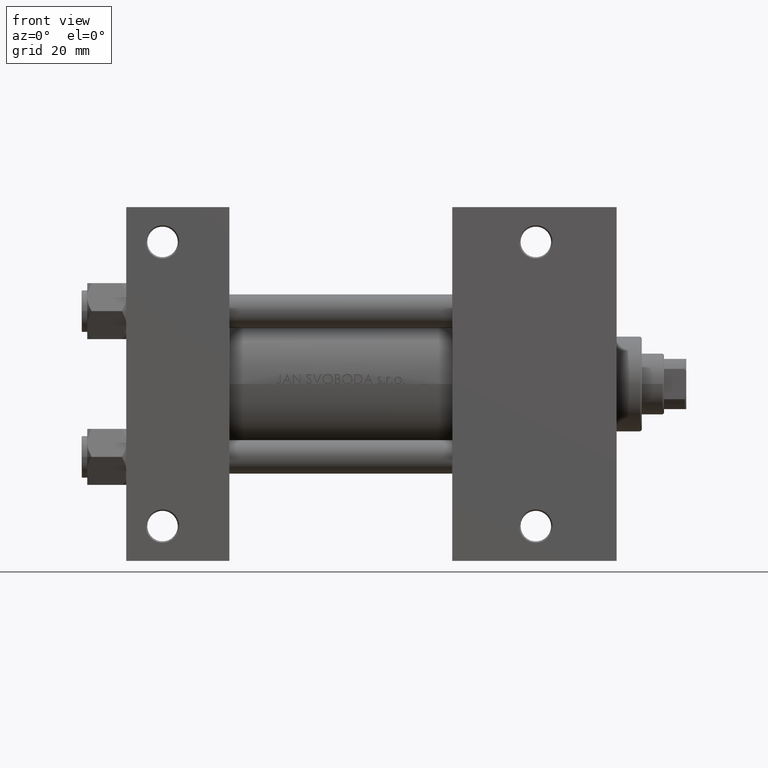
[diagram: clean part render]
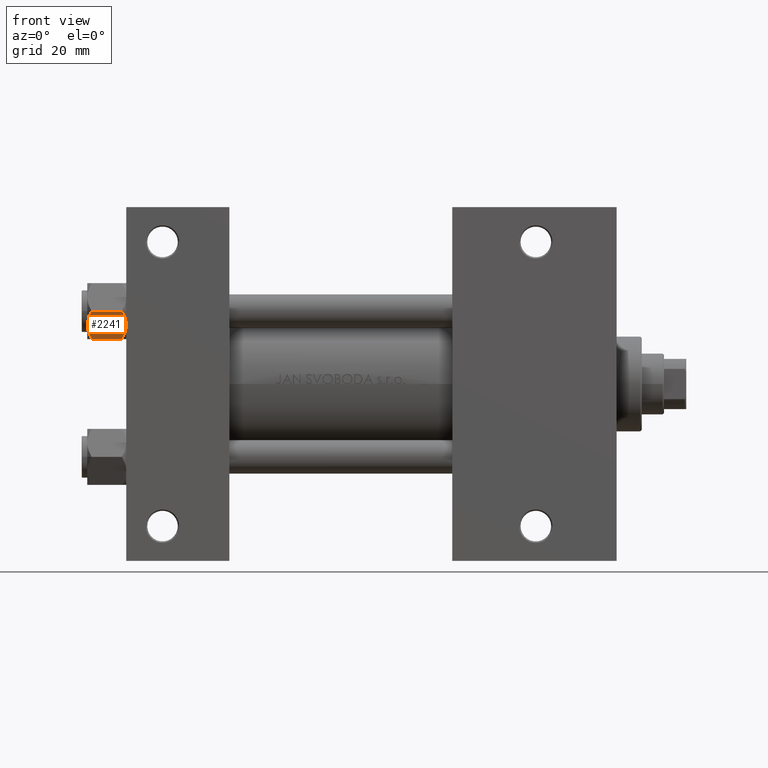
[diagram: same view with one face highlighted and labeled with its STEP entity id]
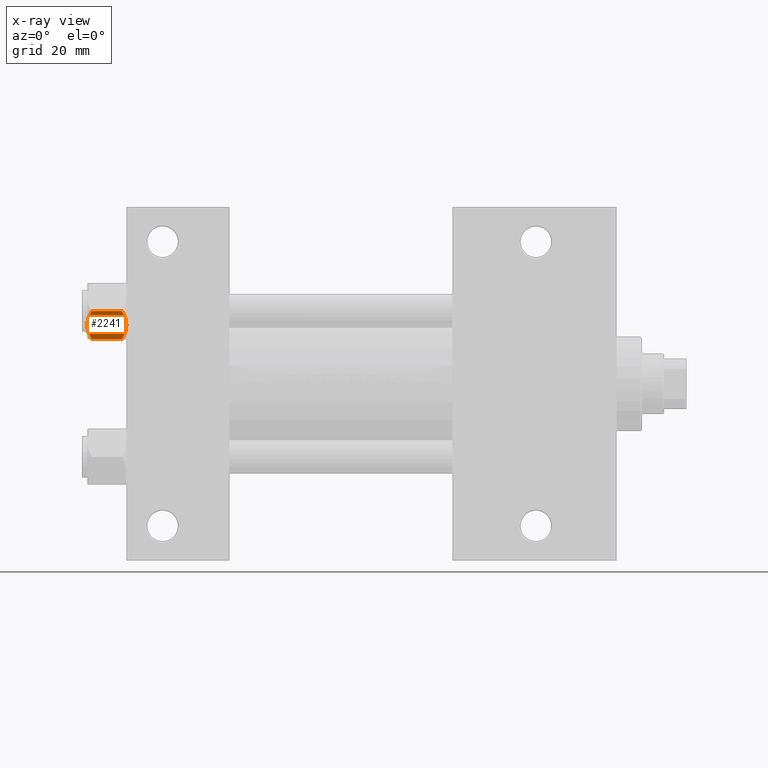
[diagram: x-ray of the same camera — body ghosted, the highlighted face saturated]
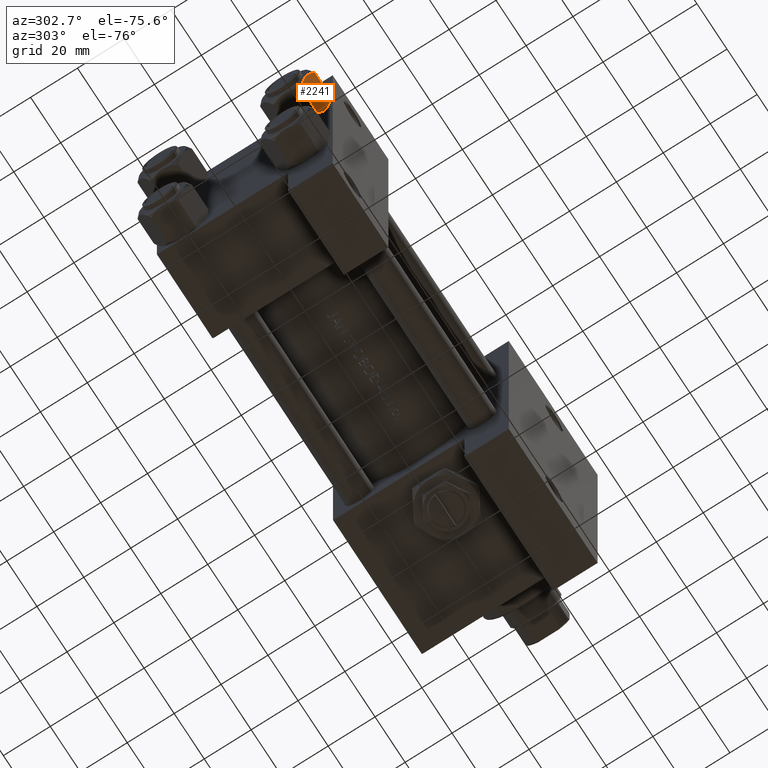
[diagram: same view with one face highlighted and labeled with its STEP entity id]
A machine part, front view. The second image highlights one B-rep face of the part: STEP entity #2241.
The next image is the same camera in x-ray: the body ghosted, the highlighted face saturated — about 0% of this face is hidden behind the body in this view.
A second angle (auxiliary view) of the same face is appended — the face is thin or edge-on in the first view.
In plain terms, the highlighted planar face has unit normal (0, 0.866, 0.5).
Its self-contained STEP definition (entity closure, byte-faithful):
#204 = VERTEX_POINT ( 'NONE', #11112 ) ;
#2036 = CARTESIAN_POINT ( 'NONE',  ( -7.700834831386344170, 6.788193195293096949, -0.1903979688073418330 ) ) ;
#2241 = ADVANCED_FACE ( 'NONE', ( #46553 ), #24602, .F. ) ;
#2981 = CARTESIAN_POINT ( 'NONE',  ( -8.209704053696567527, 5.906805847843725310, -14.00000000000000533 ) ) ;
#4622 = VECTOR ( 'NONE', #5082, 1000.000000000000000 ) ;
#4856 = VERTEX_POINT ( 'NONE', #40307 ) ;
#5082 = DIRECTION ( 'NONE',  ( -0.000000000000000000, -0.000000000000000000, 1.000000000000000000 ) ) ;
#5163 = VERTEX_POINT ( 'NONE', #27415 ) ;
#5898 = ORIENTED_EDGE ( 'NONE', *, *, #14773, .F. ) ;
#6280 = CARTESIAN_POINT ( 'NONE',  ( -7.455303369716805406, 7.213466161761384221, -0.3002673809867381083 ) ) ;
#6316 = ORIENTED_EDGE ( 'NONE', *, *, #12375, .F. ) ;
#7802 = ORIENTED_EDGE ( 'NONE', *, *, #11212, .F. ) ;
#9308 = CARTESIAN_POINT ( 'NONE',  ( -11.61999999999999922, 6.288644352490894150E-15, -14.00000000000000000 ) ) ;
#9390 = ORIENTED_EDGE ( 'NONE', *, *, #11914, .F. ) ;
#9404 = DIRECTION ( 'NONE',  ( 0.5000000000000001110, 0.8660254037844384856, 0.000000000000000000 ) ) ;
#9760 = CARTESIAN_POINT ( 'NONE',  ( -8.715000000000001634, 5.031607595987591885, 0.000000000000000000 ) ) ;
#10204 = CARTESIAN_POINT ( 'NONE',  ( -7.713000053756302599, 6.767122412062954062, -13.84547602999601601 ) ) ;
#11042 = CARTESIAN_POINT ( 'NONE',  ( -8.969430103550378064, 4.590921729663314466, -14.00000000000000178 ) ) ;
#11112 = CARTESIAN_POINT ( 'NONE',  ( -11.61999999999999922, 6.270720075510426383E-15, -12.44321519197518811 ) ) ;
#11212 = EDGE_CURVE ( 'NONE', #204, #14468, #29225, .T. ) ;
#11285 = CARTESIAN_POINT ( 'NONE',  ( -9.227666995912096937, 4.143642311704127223, -13.96005881939308857 ) ) ;
#11914 = EDGE_CURVE ( 'NONE', #4856, #5163, #27046, .T. ) ;
#12110 = VERTEX_POINT ( 'NONE', #15766 ) ;
#12375 = EDGE_CURVE ( 'NONE', #5163, #12110, #29802, .T. ) ;
#12882 = DIRECTION ( 'NONE',  ( 0.8660254037844385966, -0.5000000000000002220, 0.000000000000000000 ) ) ;
#14321 = CARTESIAN_POINT ( 'NONE',  ( -9.220295946303428636, 4.156409344131454020, 2.043043468777371629E-15 ) ) ;
#14468 = VERTEX_POINT ( 'NONE', #16332 ) ;
#14773 = EDGE_CURVE ( 'NONE', #12110, #27246, #42713, .T. ) ;
#15766 = CARTESIAN_POINT ( 'NONE',  ( -8.715000000000001634, 5.031607595987591885, 0.000000000000000000 ) ) ;
#16332 = CARTESIAN_POINT ( 'NONE',  ( -8.715000000000001634, 5.031607595987591885, -14.00000000000000000 ) ) ;
#17228 = CARTESIAN_POINT ( 'NONE',  ( -8.460569896449618099, 5.472293462311865753, 2.204732646931026331E-15 ) ) ;
#17567 = CARTESIAN_POINT ( 'NONE',  ( -10.69662495661650325, 1.599332489581336780, -0.7114554706434498277 ) ) ;
#18173 = CARTESIAN_POINT ( 'NONE',  ( -5.809999999999997833, 10.06321519197518022, -12.44321519197518455 ) ) ;
#18544 = CARTESIAN_POINT ( 'NONE',  ( -8.715000000000001634, 5.031607595987591885, 0.000000000000000000 ) ) ;
#19617 = ORIENTED_EDGE ( 'NONE', *, *, #37010, .T. ) ;
#20956 = CARTESIAN_POINT ( 'NONE',  ( -6.265545725125282850, 9.274186850887385702, -1.101239082899535537 ) ) ;
#21653 = CARTESIAN_POINT ( 'NONE',  ( -6.265018354709776638, 9.275100283241455301, -12.89823354668505218 ) ) ;
#22994 = CARTESIAN_POINT ( 'NONE',  ( -11.61999999999999922, 6.270720075510426383E-15, -12.44321519197518811 ) ) ;
#23225 = CARTESIAN_POINT ( 'NONE',  ( -9.729165168613649328, 3.275021996682086822, -13.80960203119265906 ) ) ;
#24602 = PLANE ( 'NONE',  #44635 ) ;
#24740 = B_SPLINE_CURVE_WITH_KNOTS ( 'NONE', 3,
 ( #48076, #2981, #10204, #30138, #21653, #18173 ),
 .UNSPECIFIED., .F., .F.,
 ( 4, 2, 4 ),
 ( 0.006022845781655582903, 0.009013049135303629819, 0.01200325248895167847 ),
 .UNSPECIFIED. ) ;
#25232 = EDGE_LOOP ( 'NONE', ( #7802, #19617, #5898, #6316, #9390, #31334 ) ) ;
#27046 = LINE ( 'NONE', #35023, #41683 ) ;
#27246 = VERTEX_POINT ( 'NONE', #28652 ) ;
#27415 = CARTESIAN_POINT ( 'NONE',  ( -5.809999999999997833, 10.06321519197518022, -1.556784808024815447 ) ) ;
#28652 = CARTESIAN_POINT ( 'NONE',  ( -11.61999999999999922, 6.301834029662224111E-15, -1.556784808024812117 ) ) ;
#29084 = CARTESIAN_POINT ( 'NONE',  ( -11.61999999999999922, 6.288644352490894150E-15, -14.00000000000000000 ) ) ;
#29225 = B_SPLINE_CURVE_WITH_KNOTS ( 'NONE', 3,
 ( #22994, #45667, #45168, #45423, #23225, #11285, #11042, #38196 ),
 .UNSPECIFIED., .F., .F.,
 ( 4, 2, 2, 4 ),
 ( 2.544312114905218436E-07, 0.003011550106433537755, 0.004517197944044560980, 0.006022845781655582903 ),
 .UNSPECIFIED. ) ;
#29534 = CARTESIAN_POINT ( 'NONE',  ( -9.716999946243698005, 3.296092779912228377, -0.1545239700039844066 ) ) ;
#29802 = B_SPLINE_CURVE_WITH_KNOTS ( 'NONE', 3,
 ( #40406, #20956, #36167, #6280, #2036, #43889, #17228, #9760 ),
 .UNSPECIFIED., .F., .F.,
 ( 4, 2, 2, 4 ),
 ( 2.544312114902182352E-07, 0.003011550106433540791, 0.004517197944044565316, 0.006022845781655589842 ),
 .UNSPECIFIED. ) ;
#30138 = CARTESIAN_POINT ( 'NONE',  ( -6.733375043383492020, 8.463882702393842550, -13.28854452935654962 ) ) ;
#30788 = DIRECTION ( 'NONE',  ( -0.000000000000000000, -0.000000000000000000, 1.000000000000000000 ) ) ;
#31334 = ORIENTED_EDGE ( 'NONE', *, *, #49106, .F. ) ;
#32783 = CARTESIAN_POINT ( 'NONE',  ( -11.16498164529022041, 0.7881149087337345760, -1.101766453314951821 ) ) ;
#35023 = CARTESIAN_POINT ( 'NONE',  ( -5.809999999999997833, 10.06321519197518022, -14.00000000000000000 ) ) ;
#35955 = LINE ( 'NONE', #9308, #4622 ) ;
#36167 = CARTESIAN_POINT ( 'NONE',  ( -6.731401448974986934, 8.467301068182916168, -0.7141438259524663934 ) ) ;
#37010 = EDGE_CURVE ( 'NONE', #204, #27246, #35955, .T. ) ;
#38196 = CARTESIAN_POINT ( 'NONE',  ( -8.715000000000001634, 5.031607595987591885, -14.00000000000000000 ) ) ;
#40307 = CARTESIAN_POINT ( 'NONE',  ( -5.809999999999997833, 10.06321519197518022, -12.44321519197518455 ) ) ;
#40406 = CARTESIAN_POINT ( 'NONE',  ( -5.809999999999997833, 10.06321519197518022, -1.556784808024815447 ) ) ;
#40988 = CARTESIAN_POINT ( 'NONE',  ( -11.61999999999999922, 6.301834029662224111E-15, -1.556784808024812117 ) ) ;
#41683 = VECTOR ( 'NONE', #30788, 1000.000000000000000 ) ;
#42713 = B_SPLINE_CURVE_WITH_KNOTS ( 'NONE', 3,
 ( #18544, #14321, #29534, #17567, #32783, #40988 ),
 .UNSPECIFIED., .F., .F.,
 ( 4, 2, 4 ),
 ( 0.006022845781655589842, 0.009013049135303635023, 0.01200325248895167847 ),
 .UNSPECIFIED. ) ;
#43889 = CARTESIAN_POINT ( 'NONE',  ( -8.202333004087897450, 5.919572880271055659, -0.03994118060690795419 ) ) ;
#44635 = AXIS2_PLACEMENT_3D ( 'NONE', #29084, #12882, #9404 ) ;
#45168 = CARTESIAN_POINT ( 'NONE',  ( -10.69859855102501101, 1.595914123792268491, -13.28585617404753627 ) ) ;
#45423 = CARTESIAN_POINT ( 'NONE',  ( -9.974696630283190757, 2.849749030213795109, -13.69973261901325934 ) ) ;
#45667 = CARTESIAN_POINT ( 'NONE',  ( -11.16445427487471598, 0.7890283410878030645, -12.89876091710047312 ) ) ;
#46553 = FACE_OUTER_BOUND ( 'NONE', #25232, .T. ) ;
#48076 = CARTESIAN_POINT ( 'NONE',  ( -8.715000000000001634, 5.031607595987591885, -14.00000000000000000 ) ) ;
#49106 = EDGE_CURVE ( 'NONE', #14468, #4856, #24740, .T. ) ;